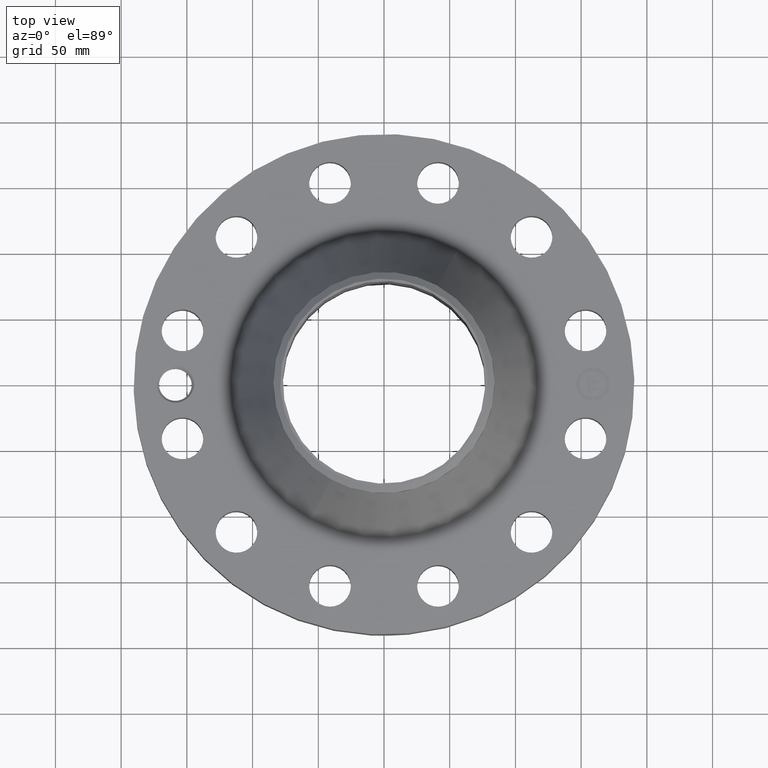
[diagram: clean part render]
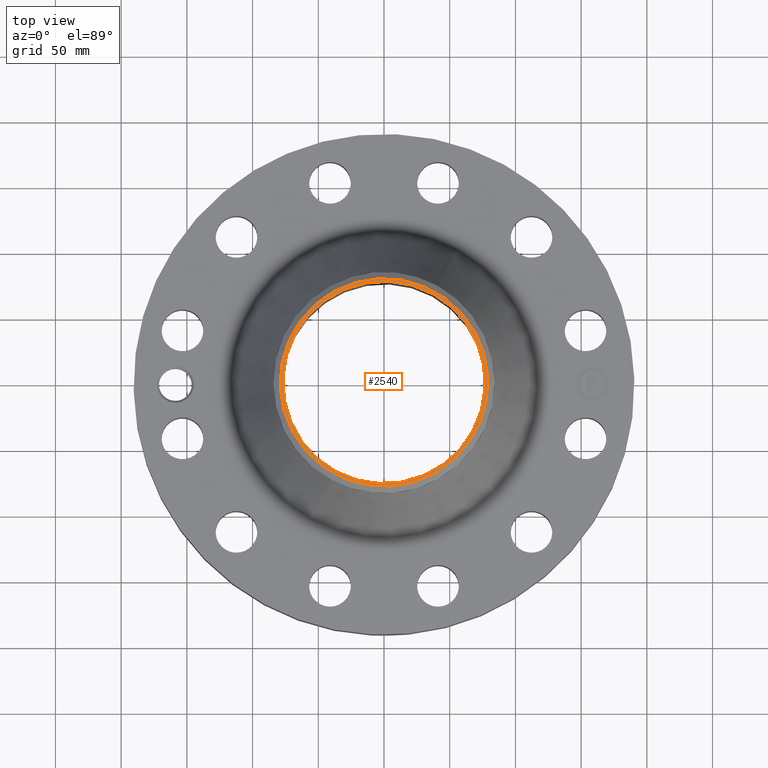
[diagram: same view with one face highlighted and labeled with its STEP entity id]
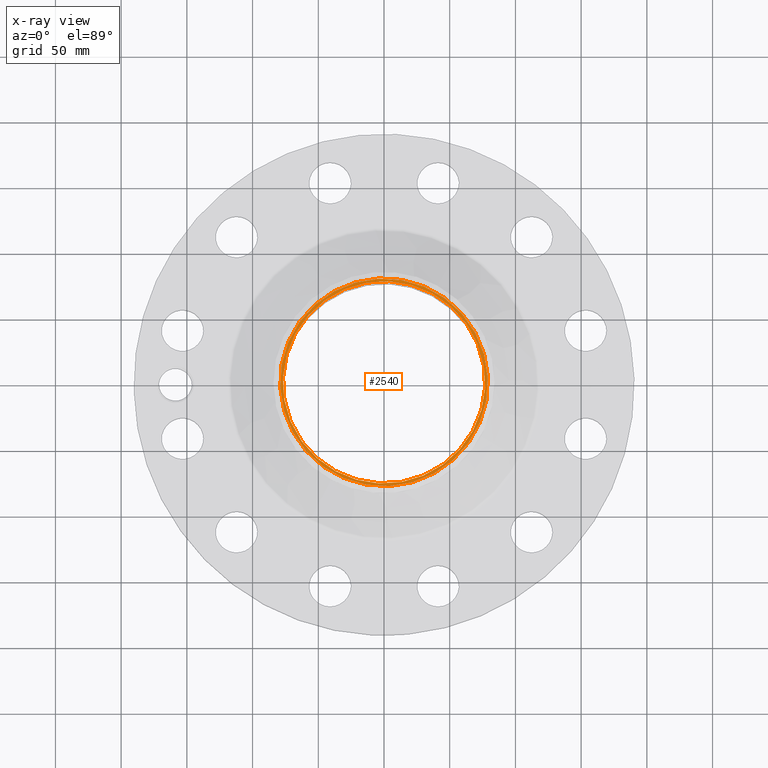
[diagram: x-ray of the same camera — body ghosted, the highlighted face saturated]
A machine part, top view. The second image highlights one B-rep face of the part: STEP entity #2540.
The next image is the same camera in x-ray: the body ghosted, the highlighted face saturated — about 0% of this face is hidden behind the body in this view.
In plain terms, the highlighted planar face has unit normal (0, 0, -1).
Its self-contained STEP definition (entity closure, byte-faithful):
#1308=AXIS2_PLACEMENT_3D('Circle Axis2P3D',#1306,#1307,$) ;
#1376=AXIS2_PLACEMENT_3D('Circle Axis2P3D',#1374,#1375,$) ;
#2516=AXIS2_PLACEMENT_3D('Plane Axis2P3D',#2513,#2514,#2515) ;
#2520=AXIS2_PLACEMENT_3D('Circle Axis2P3D',#2518,#2519,$) ;
#2529=AXIS2_PLACEMENT_3D('Circle Axis2P3D',#2527,#2528,$) ;
#1306=CARTESIAN_POINT('Axis2P3D Location',(0.,0.,5.75000000002)) ;
#1310=CARTESIAN_POINT('Vertex',(1.45385794582,2.66126911894,5.75000000002)) ;
#1312=CARTESIAN_POINT('Vertex',(-1.45385794582,-2.66126911894,5.75000000002)) ;
#1374=CARTESIAN_POINT('Axis2P3D Location',(0.,0.,5.75000000002)) ;
#2513=CARTESIAN_POINT('Axis2P3D Location',(0.,3.31500000001,5.75000000002)) ;
#2518=CARTESIAN_POINT('Axis2P3D Location',(0.,0.,5.75000000002)) ;
#2522=CARTESIAN_POINT('Vertex',(1.49160798823,-2.73037010807,5.75000000002)) ;
#2524=CARTESIAN_POINT('Vertex',(-1.49160798823,2.73037010807,5.75000000002)) ;
#2527=CARTESIAN_POINT('Axis2P3D Location',(0.,0.,5.75000000002)) ;
#1307=DIRECTION('Axis2P3D Direction',(0.,0.,-0.0393700787402)) ;
#1375=DIRECTION('Axis2P3D Direction',(0.,0.,-0.0393700787402)) ;
#2514=DIRECTION('Axis2P3D Direction',(0.,0.,-0.0393700787402)) ;
#2515=DIRECTION('Axis2P3D XDirection',(0.0393700787402,0.,0.)) ;
#2519=DIRECTION('Axis2P3D Direction',(0.,0.,-0.0393700787402)) ;
#2528=DIRECTION('Axis2P3D Direction',(0.,0.,-0.0393700787402)) ;
#2533=ORIENTED_EDGE('',*,*,#2526,.T.) ;
#2534=ORIENTED_EDGE('',*,*,#2531,.T.) ;
#2537=ORIENTED_EDGE('',*,*,#1378,.T.) ;
#2538=ORIENTED_EDGE('',*,*,#1314,.T.) ;
#2539=FACE_BOUND('',#2536,.T.) ;
#2540=ADVANCED_FACE('PartBody',(#2535,#2539),#2517,.F.) ;
#1309=CIRCLE('generated circle',#1308,3.03250000001) ;
#1377=CIRCLE('generated circle',#1376,3.03250000001) ;
#2521=CIRCLE('generated circle',#2520,3.11124015749) ;
#2530=CIRCLE('generated circle',#2529,3.11124015749) ;
#1314=EDGE_CURVE('',#1311,#1313,#1309,.T.) ;
#1378=EDGE_CURVE('',#1313,#1311,#1377,.T.) ;
#2526=EDGE_CURVE('',#2523,#2525,#2521,.F.) ;
#2531=EDGE_CURVE('',#2525,#2523,#2530,.F.) ;
#2532=EDGE_LOOP('',(#2533,#2534)) ;
#2536=EDGE_LOOP('',(#2537,#2538)) ;
#2535=FACE_OUTER_BOUND('',#2532,.T.) ;
#2517=PLANE('',#2516) ;
#1311=VERTEX_POINT('',#1310) ;
#1313=VERTEX_POINT('',#1312) ;
#2523=VERTEX_POINT('',#2522) ;
#2525=VERTEX_POINT('',#2524) ;